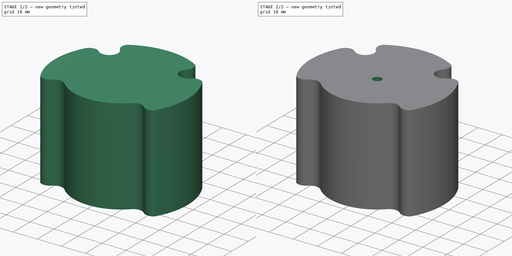
[diagram: build sequence overview — one tinted view per stage of 2, left to right]
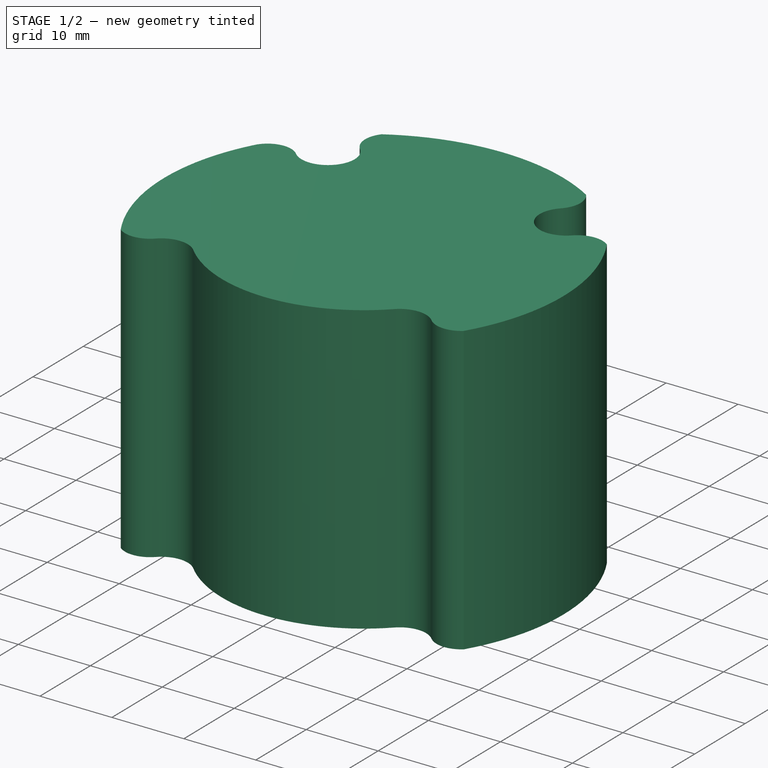
[diagram: stage 1 of 2 — iso view after this stage's code; geometry added in this stage tinted green]
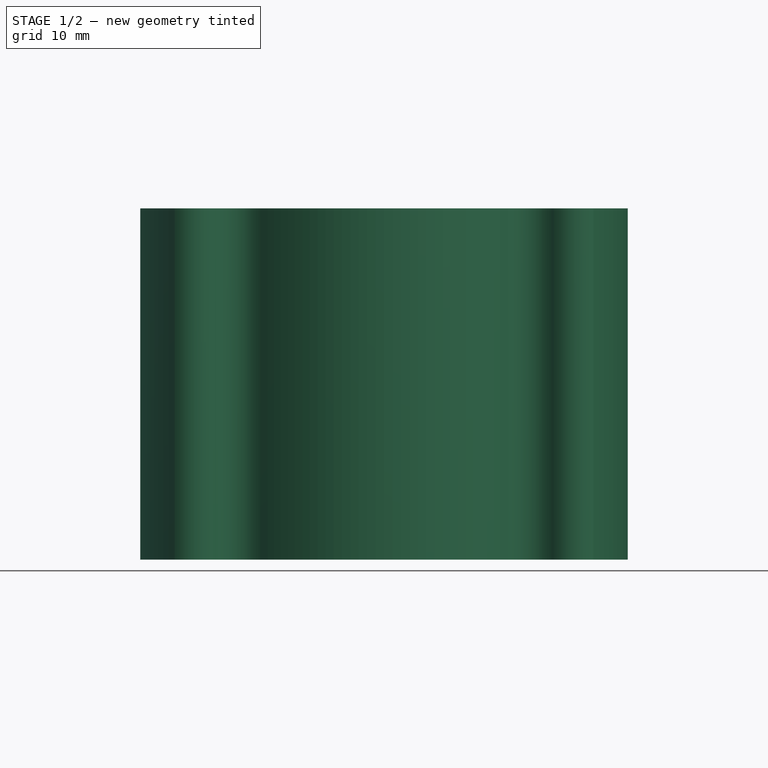
[diagram: stage 1 of 2 — front view after this stage's code; geometry added in this stage tinted green]
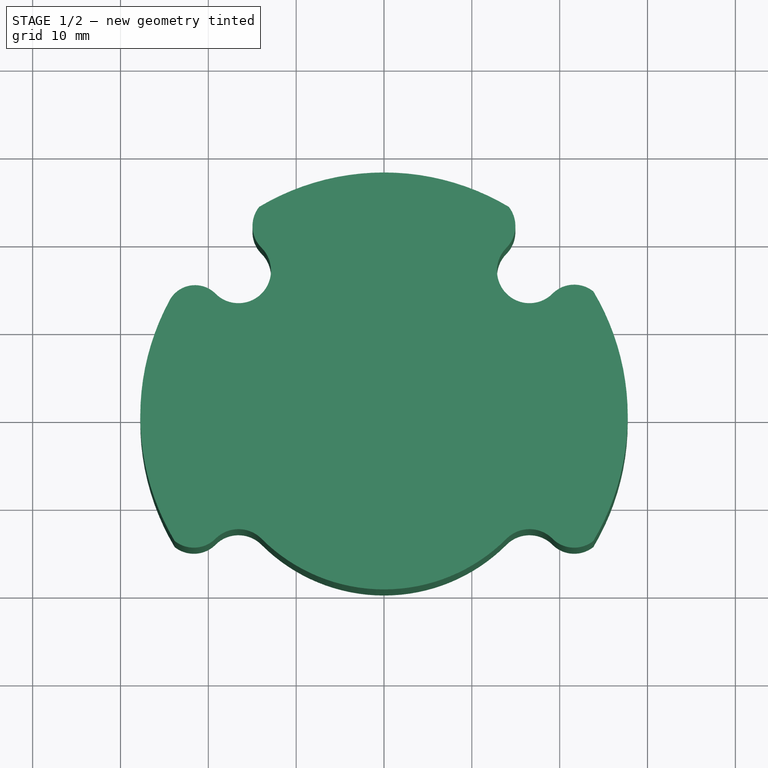
[diagram: stage 1 of 2 — top view after this stage's code; geometry added in this stage tinted green]
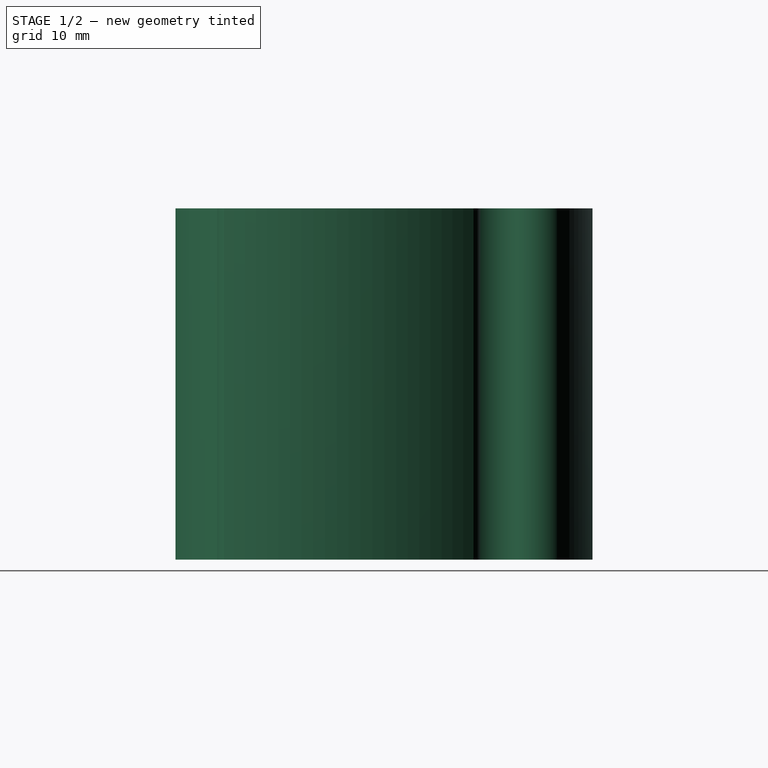
[diagram: stage 1 of 2 — right view after this stage's code; geometry added in this stage tinted green]
FCSTD DOCUMENT  (FreeCAD 1.0R39319 (Git))
Label: pistone
License: All rights reserved
objects: Sketcher::SketchObject×3, PartDesign::Pocket×2, PartDesign::Pad×1, PartDesign::Fillet×1, PartDesign::Body×1
note: 19 computed .brp shape members not serialized (recipe doc carries the construction recipe); baked Part::Feature solids carry a one-line shape summary decoded from their .brp

FEATURE [Sketcher::SketchObject] Sketch
  ArcFitTolerance = 1e-06
  AttachmentSupport = -> [XY_Plane]
  FullyConstrained = false
  MakeInternals = false
  MapMode = 5
  sketch-geometry (25):
    g0: ArcOfCircle CenterX=0 CenterY=0 CenterZ=0 NormalX=0 NormalY=0 NormalZ=1 AngleXU=0 Radius=27.75 StartAngle=1.03357 EndAngle=2.10807
    g1: LineSegment [constr] StartX=0 StartY=0 StartZ=0 EndX=16.566 EndY=16.566 EndZ=0
    g2: LineSegment [constr] StartX=0 StartY=0 StartZ=0 EndX=-16.566 EndY=16.566 EndZ=0
    g3: LineSegment [constr] StartX=0 StartY=0 StartZ=0 EndX=16.566 EndY=-16.566 EndZ=0
    g4: LineSegment [constr] StartX=0 StartY=0 StartZ=0 EndX=-16.566 EndY=-16.566 EndZ=0
    g5: ArcOfCircle CenterX=16.566 CenterY=16.566 CenterZ=0 NormalX=0 NormalY=0 NormalZ=1 AngleXU=0 Radius=3.7 StartAngle=2.36203 EndAngle=5.49778
    g6: ArcOfCircle CenterX=-16.566 CenterY=16.566 CenterZ=0 NormalX=0 NormalY=0 NormalZ=1 AngleXU=0 Radius=3.7 StartAngle=3.92699 EndAngle=7.06858
    g7: ArcOfCircle CenterX=-16.566 CenterY=-16.566 CenterZ=0 NormalX=0 NormalY=0 NormalZ=1 AngleXU=0 Radius=3.7 StartAngle=0.785398 EndAngle=2.35619
    g8: ArcOfCircle CenterX=16.566 CenterY=-16.566 CenterZ=0 NormalX=0 NormalY=0 NormalZ=1 AngleXU=0 Radius=3.7 StartAngle=0.785398 EndAngle=2.35619
    g9: Circle [constr] CenterX=0 CenterY=0 CenterZ=0 NormalX=0 NormalY=0 NormalZ=1 AngleXU=0 Radius=28
    g10: LineSegment [constr] StartX=11.5257 StartY=16.73 StartZ=0 EndX=16.9888 EndY=22.2571 EndZ=0
    g11: LineSegment [constr] StartX=17.9013 StartY=12.6687 StartZ=0 EndX=22.2417 EndY=17.0091 EndZ=0
    g12: ArcOfCircle CenterX=11.4171 CenterY=21.6552 CenterZ=0 NormalX=0 NormalY=0 NormalZ=1 AngleXU=0 Radius=3.53953 StartAngle=5.50362 EndAngle=6.94879
    g13: ArcOfCircle CenterX=21.6521 CenterY=11.4799 CenterZ=0 NormalX=0 NormalY=0 NormalZ=1 AngleXU=0 Radius=3.49281 StartAngle=0.893796 EndAngle=2.35619
    g14: LineSegment [constr] StartX=-9.0652 StartY=14.2978 StartZ=0 EndX=-17.0091 EndY=22.2417 EndZ=0
    g15: LineSegment [constr] StartX=-16.0207 StartY=10.7881 StartZ=0 EndX=-22.2417 EndY=17.0091 EndZ=0
    g16: ArcOfCircle CenterX=-11.48 CenterY=21.6521 CenterZ=0 NormalX=0 NormalY=0 NormalZ=1 AngleXU=0 Radius=3.49279 StartAngle=2.4646 EndAngle=3.92699
    g17: ArcOfCircle CenterX=-21.5151 CenterY=11.617 CenterZ=0 NormalX=0 NormalY=0 NormalZ=1 AngleXU=0 Radius=3.29898 StartAngle=0.785398 EndAngle=2.6465
    g18: ArcOfCircle CenterX=0 CenterY=0 CenterZ=0 NormalX=0 NormalY=0 NormalZ=1 AngleXU=0 Radius=27.75 StartAngle=2.6465 EndAngle=3.67887
    g19: LineSegment [constr] StartX=-22.2417 StartY=-17.0091 StartZ=0 EndX=-16.4769 EndY=-11.2443 EndZ=0
    g20: LineSegment [constr] StartX=22.2417 StartY=-17.0091 StartZ=0 EndX=17.8485 EndY=-12.6159 EndZ=0
    g21: ArcOfCircle CenterX=-21.6521 CenterY=-11.4799 CenterZ=0 NormalX=0 NormalY=0 NormalZ=1 AngleXU=0 Radius=3.4928 StartAngle=4.03541 EndAngle=5.49779
    g22: ArcOfCircle CenterX=21.6521 CenterY=-11.4799 CenterZ=0 NormalX=0 NormalY=0 NormalZ=1 AngleXU=0 Radius=3.4928 StartAngle=3.92699 EndAngle=5.38937
    g23: ArcOfCircle CenterX=0 CenterY=0 CenterZ=0 NormalX=0 NormalY=0 NormalZ=1 AngleXU=0 Radius=19.7279 StartAngle=3.92699 EndAngle=5.49779
    g24: ArcOfCircle CenterX=0 CenterY=0 CenterZ=0 NormalX=0 NormalY=0 NormalZ=1 AngleXU=0 Radius=27.75 StartAngle=5.74591 EndAngle=6.82046
  constraints (60):
    c: Diameter(g0) = 55.5
    c: Coincident(g0,g-1)
    c: Coincident(g1,g0)
    c: Coincident(g2,g0)
    c: Coincident(g3,g0)
    c: Coincident(g4,g0)
    c: Distance(g1,g-1) = 23.4279
    c: Symmetric(g1,g2,g-2)
    c: Symmetric(g3,g1,g-1)
    c: Symmetric(g4,g2,g-1)
    c: Angle(g-1,g1) = 0.785398
    c: Diameter(g5) = 7.4
    c: Coincident(g5,g1)
    c: Coincident(g6,g2)
    c: Coincident(g7,g4)
    c: Coincident(g8,g3)
    c: Diameter(g7) = 7.4
    c: Diameter(g6) = 7.4
    c: Diameter(g8) = 7.4
    c: Diameter(g9) = 56
    c: Coincident(g9,g0)
    c: PointOnObject(g10,g9)
    c: PointOnObject(g11,g9)
    c: Tangent(g5,g11) = -1.5708
    c: Tangent(g13,g5) = 1.5708
    c: Coincident(g0,g12)
    c: Coincident(g24,g13)
    c: PointOnObject(g14,g9)
    c: PointOnObject(g15,g9)
    c: Parallel(g2,g15)
    c: Parallel(g2,g14)
    c: Tangent(g15,g6)
    c: Tangent(g17,g0)
    c: Tangent(g17,g15)
    c: Tangent(g16,g14) = 1.5708
    c: Equal(g0,g18)
    c: Coincident(g0,g16)
    c: Coincident(g0,g18)
    c: Coincident(g17,g18)
    c: Tangent(g6,g16) = 1.5708
    c: Tangent(g6,g17) = 1.5708
    c: PointOnObject(g19,g9)
    c: PointOnObject(g20,g9)
    c: Parallel(g20,g3)
    c: Parallel(g19,g4)
    c: Tangent(g19,g7)
    c: Tangent(g22,g20)
    c: Coincident(g23,g0)
    c: Equal(g18,g24)
    c: Coincident(g18,g21)
    c: Coincident(g18,g24)
    c: Tangent(g7,g21) = 1.5708
    c: Tangent(g7,g23) = 1.5708
    c: Tangent(g22,g8) = 1.5708
    c: Tangent(g8,g20) = -1.5708
    c: Coincident(g22,g24)
    c: Coincident(g23,g8)
    c: Tangent(g5,g10)
    c: Tangent(g12,g10)
    c: Coincident(g5,g12)
FEATURE [PartDesign::Pad] Pad
  Direction = (0,0,1)
  Length = 40
  Length2 = 10
  Profile = -> Sketch
  ReferenceAxis = -> Sketch [N_Axis]
  Refine = true
  Suppressed = false
  Type = 0
FEATURE [Sketcher::SketchObject] Sketch001
  ArcFitTolerance = 1e-06
  AttachmentSupport = -> [Pad]
  ExternalGeometry = -> [Pad]
  FullyConstrained = false
  MakeInternals = false
  MapMode = 5
  Placement = pos=(0,0,0) rot=(1,0,0;3.14159rad)
  sketch-geometry (9):
    g0: ArcOfCircle CenterX=-16.566 CenterY=16.566 CenterZ=0 NormalX=0 NormalY=0 NormalZ=1 AngleXU=0 Radius=6.7 StartAngle=3.86705 EndAngle=5.49779
    g1: ArcOfCircle CenterX=16.566 CenterY=16.566 CenterZ=0 NormalX=0 NormalY=0 NormalZ=1 AngleXU=0 Radius=6.7 StartAngle=3.92699 EndAngle=5.55773
    g2: ArcOfCircle CenterX=16.566 CenterY=-16.566 CenterZ=0 NormalX=0 NormalY=0 NormalZ=1 AngleXU=0 Radius=6.7 StartAngle=0.725458 EndAngle=3.98693
    g3: ArcOfCircle CenterX=-16.566 CenterY=-16.566 CenterZ=0 NormalX=0 NormalY=0 NormalZ=1 AngleXU=0 Radius=6.7 StartAngle=5.43785 EndAngle=8.69932
    g4: ArcOfCircle CenterX=0 CenterY=0 CenterZ=0 NormalX=0 NormalY=0 NormalZ=1 AngleXU=0 Radius=24.75 StartAngle=2.62982 EndAngle=3.65337
    g5: GeomPoint X=-11.8253 Y=11.8315 Z=0
    g6: ArcOfCircle CenterX=0 CenterY=0 CenterZ=0 NormalX=0 NormalY=0 NormalZ=1 AngleXU=0 Radius=24.75 StartAngle=4.20061 EndAngle=5.22416
    g7: ArcOfCircle CenterX=0 CenterY=0 CenterZ=0 NormalX=0 NormalY=0 NormalZ=1 AngleXU=0 Radius=24.75 StartAngle=5.77141 EndAngle=6.79496
    g8: ArcOfCircle CenterX=0 CenterY=0 CenterZ=0 NormalX=0 NormalY=0 NormalZ=1 AngleXU=0 Radius=16.7279 StartAngle=0.785398 EndAngle=2.35619
  constraints (24):
    c: Diameter(g0) = 13.4
    c: Coincident(g0,g-4)
    c: Diameter(g1) = 13.4
    c: Coincident(g1,g-16)
    c: Diameter(g2) = 13.4
    c: Coincident(g2,g-12)
    c: Diameter(g3) = 13.4
    c: Coincident(g3,g-8)
    c: Diameter(g4) = 49.5
    c: Coincident(g4,g-1)
    c: PointOnObject(g5,g0)
    c: Coincident(g0,g4)
    c: Equal(g4,g6)
    c: Coincident(g4,g6)
    c: Coincident(g4,g3)
    c: Coincident(g6,g3)
    c: Equal(g6,g7)
    c: Coincident(g6,g7)
    c: Coincident(g2,g6)
    c: Coincident(g7,g2)
    c: Coincident(g1,g7)
    c: Coincident(g8,g4)
    c: Coincident(g8,g0)
    c: Coincident(g8,g1)
FEATURE [PartDesign::Pocket] Pocket
  BaseFeature = -> Pad
  Direction = (0,0,1)
  Length = 35
  Length2 = 5
  Profile = -> Sketch001
  ReferenceAxis = -> Sketch001 [N_Axis]
  Refine = true
  Suppressed = false
  Type = 0
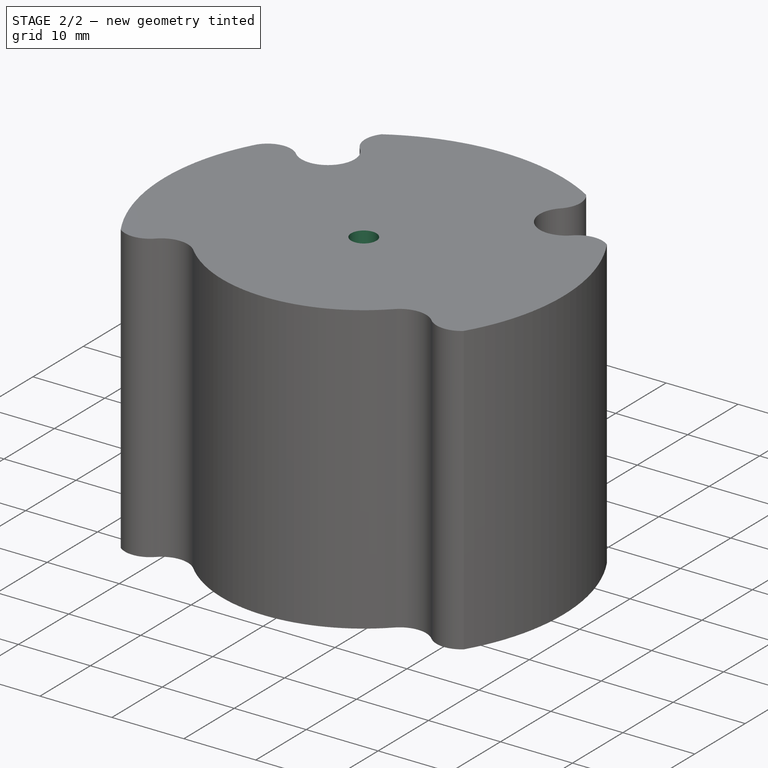
[diagram: stage 2 of 2 — iso view after this stage's code; geometry added in this stage tinted green]
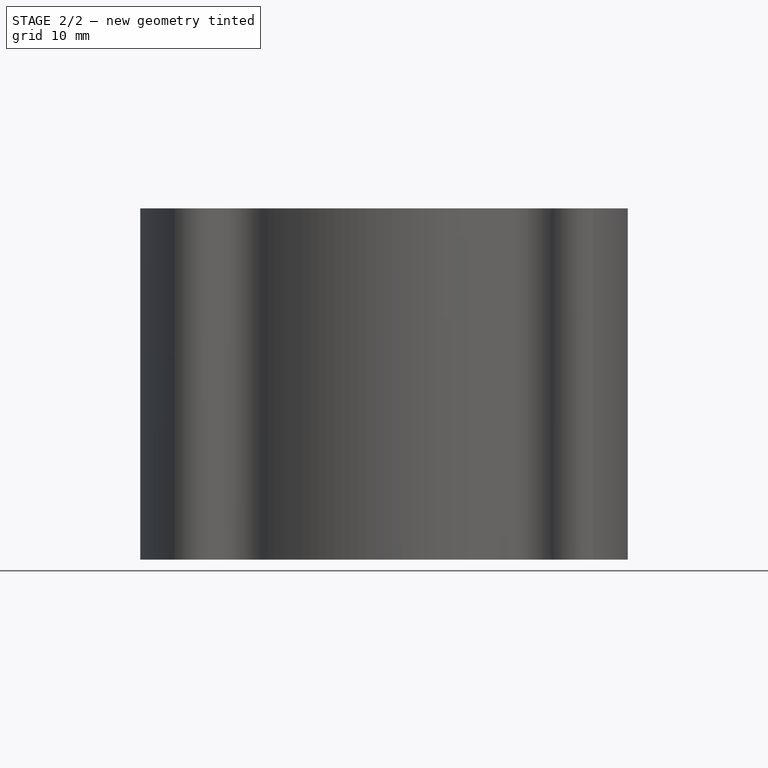
[diagram: stage 2 of 2 — front view after this stage's code; geometry added in this stage tinted green]
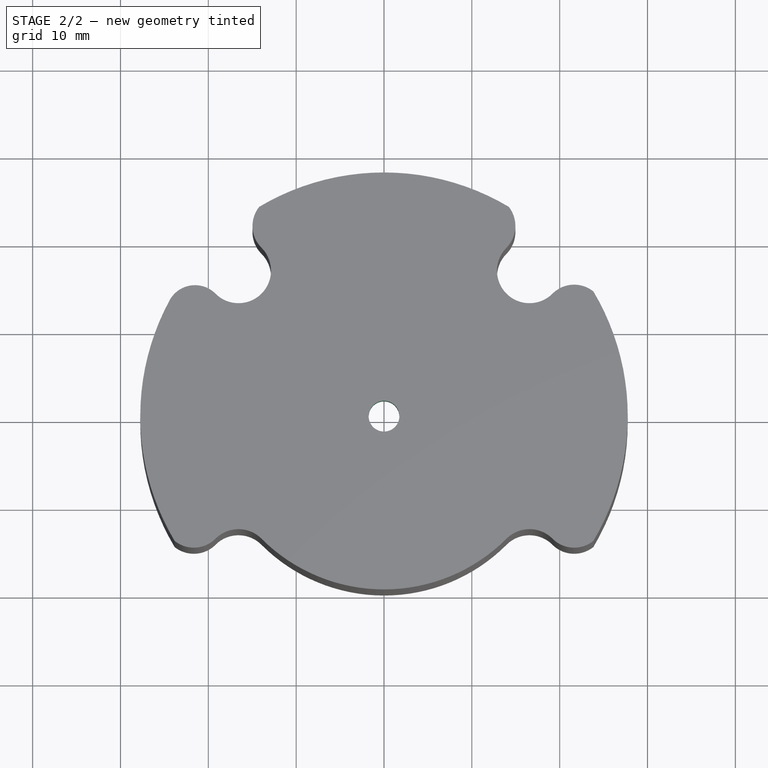
[diagram: stage 2 of 2 — top view after this stage's code; geometry added in this stage tinted green]
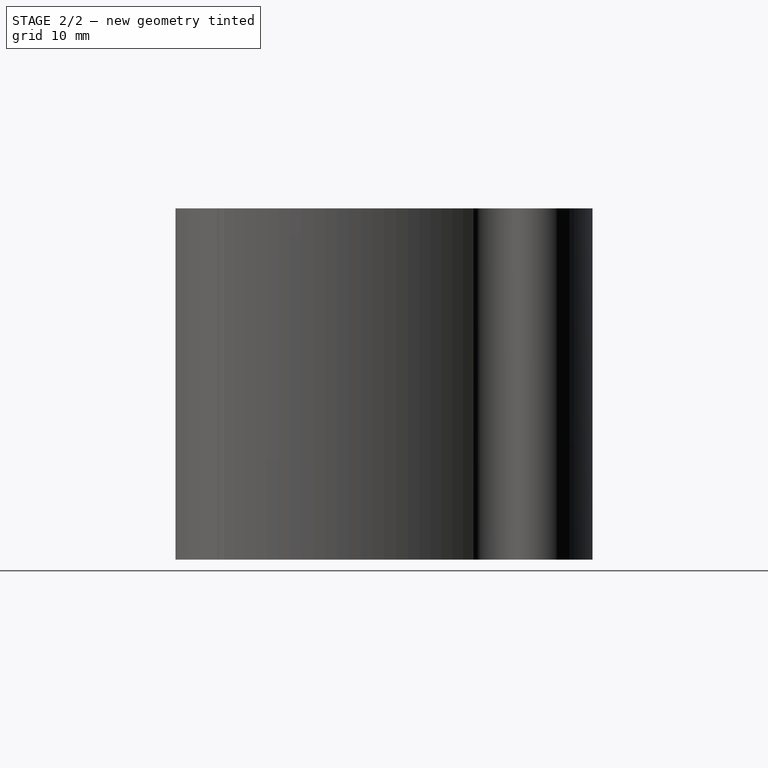
[diagram: stage 2 of 2 — right view after this stage's code; geometry added in this stage tinted green]
FEATURE [PartDesign::Fillet] Fillet
  Base = -> Pocket [Edge52,Edge51,Edge64,Edge62,Edge60,Edge54]
  BaseFeature = -> Pocket
  Radius = 2
  Refine = true
  SupportTransform = false
  Suppressed = false
  UseAllEdges = false
FEATURE [Sketcher::SketchObject] Sketch002
  ArcFitTolerance = 1e-06
  AttachmentSupport = -> [Fillet]
  FullyConstrained = true
  MakeInternals = false
  MapMode = 5
  Placement = pos=(0,0,40) rot=(0,0,1;0rad)
  sketch-geometry (1):
    g0: Circle CenterX=0 CenterY=0 CenterZ=0 NormalX=0 NormalY=0 NormalZ=1 AngleXU=0 Radius=1.75
  constraints (2):
    c: Diameter(g0) = 3.5
    c: Coincident(g0,g-1)
FEATURE [PartDesign::Pocket] Pocket001
  BaseFeature = -> Fillet
  Direction = (0,0,-1)
  Length = 5
  Length2 = 5
  Profile = -> Sketch002
  ReferenceAxis = -> Sketch002 [N_Axis]
  Refine = true
  Suppressed = false
  Type = 1
FEATURE [PartDesign::Body] Body
  AllowCompound = false
  Group = -> [Sketch,Pad,Sketch001,Pocket,Fillet,Sketch002,Pocket001]
  Origin = -> Origin
  Tip = -> Pocket001
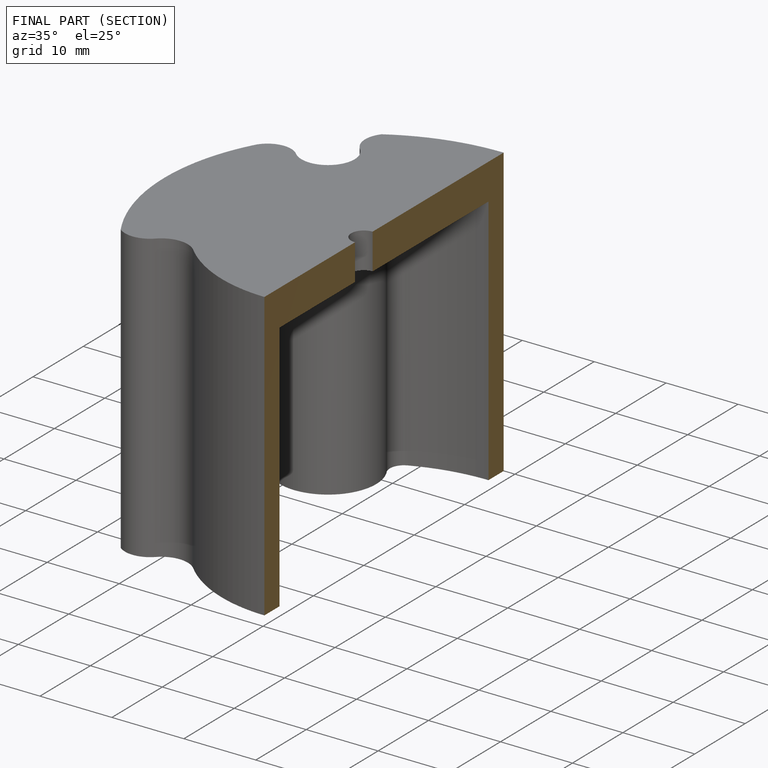
[diagram: finished part — half-section view (interior)]
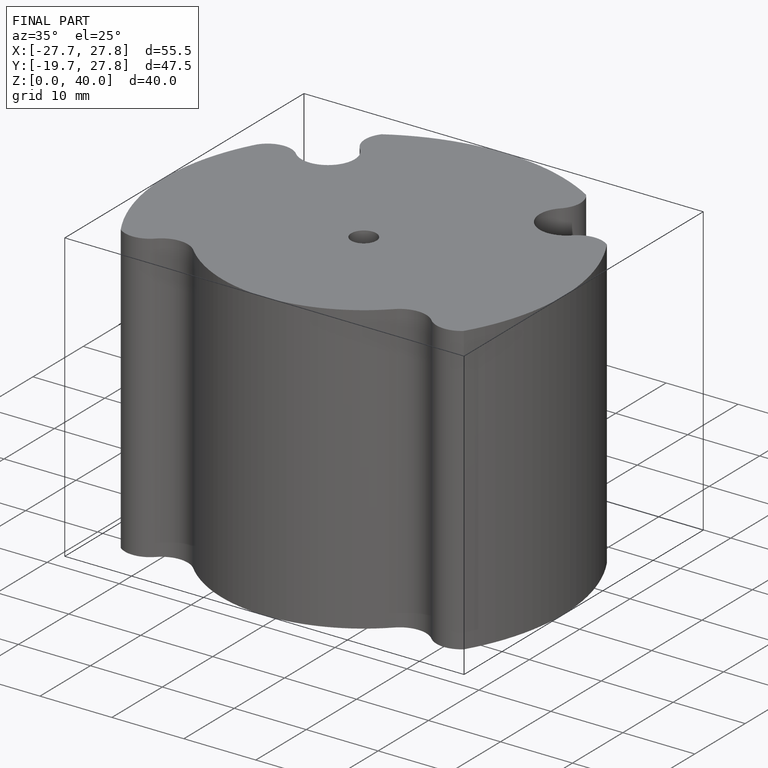
[diagram: finished part — iso view with bounding-box wireframe]
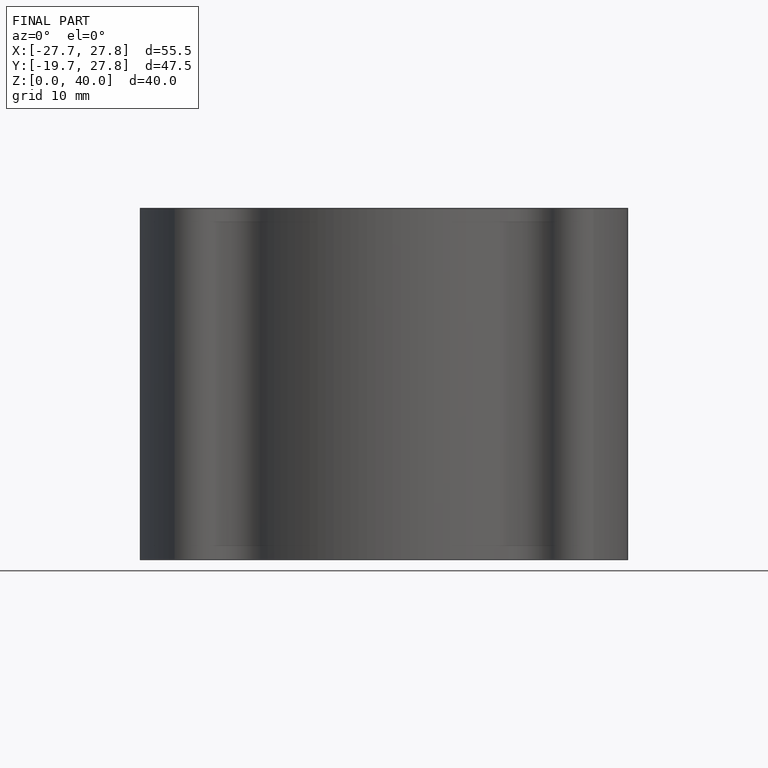
[diagram: finished part — front view with bounding-box wireframe]
